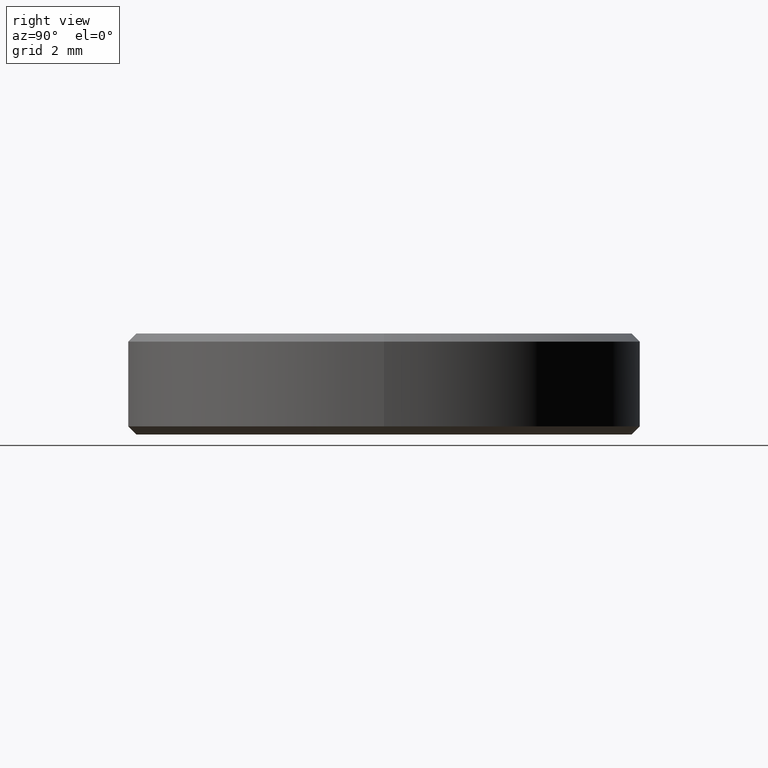
[diagram: clean part render]
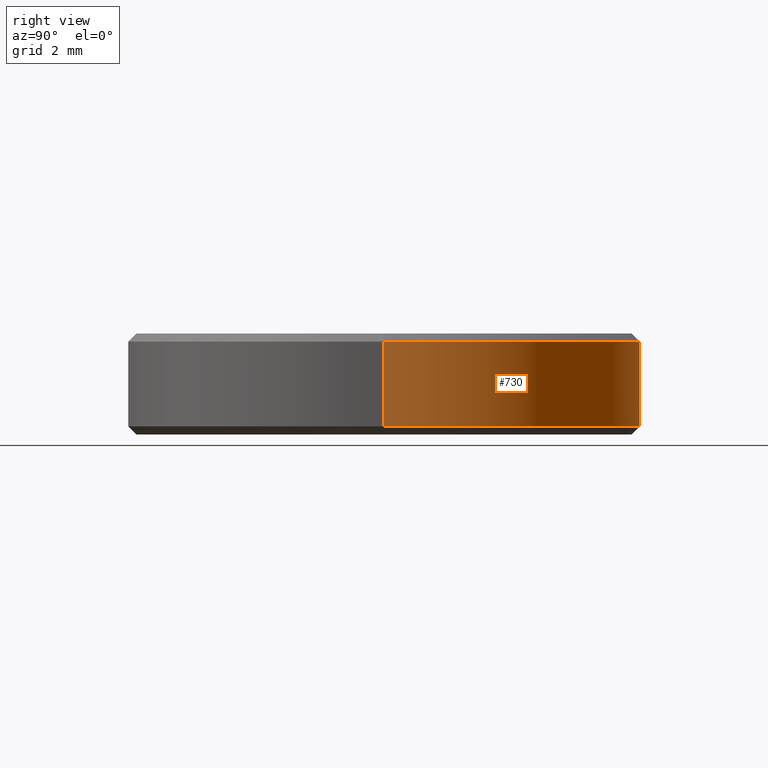
[diagram: same view with one face highlighted and labeled with its STEP entity id]
A machine part, right view. The second image highlights one B-rep face of the part: STEP entity #730.
In plain terms, the highlighted cylindrical surface (partial cylindrical patch) has radius 6.35 mm, axis along (-0, -0, -1).
Its self-contained STEP definition (entity closure, byte-faithful):
#29 = LINE ( 'NONE', #176, #898 ) ;
#36 = DIRECTION ( 'NONE',  ( -0.000000000000000000, -0.000000000000000000, 1.000000000000000000 ) ) ;
#91 = CARTESIAN_POINT ( 'NONE',  ( 0.000000000000000000, 0.000000000000000000, 2.500000000000000000 ) ) ;
#100 = CARTESIAN_POINT ( 'NONE',  ( 0.000000000000000000, 0.000000000000000000, 2.299999999999998490 ) ) ;
#130 = ORIENTED_EDGE ( 'NONE', *, *, #850, .T. ) ;
#169 = ORIENTED_EDGE ( 'NONE', *, *, #735, .F. ) ;
#170 = DIRECTION ( 'NONE',  ( -0.000000000000000000, -0.000000000000000000, -1.000000000000000000 ) ) ;
#176 = CARTESIAN_POINT ( 'NONE',  ( 6.349999999999999645, 7.776507174585692163E-16, 2.500000000000000000 ) ) ;
#279 = FACE_OUTER_BOUND ( 'NONE', #428, .T. ) ;
#336 = CIRCLE ( 'NONE', #456, 6.349999999999999645 ) ;
#337 = CARTESIAN_POINT ( 'NONE',  ( 6.349999999999999645, 7.776507174585692163E-16, 0.2000000000000013989 ) ) ;
#362 = CYLINDRICAL_SURFACE ( 'NONE', #670, 6.349999999999999645 ) ;
#369 = DIRECTION ( 'NONE',  ( -0.000000000000000000, -0.000000000000000000, -1.000000000000000000 ) ) ;
#373 = EDGE_CURVE ( 'NONE', #590, #800, #336, .T. ) ;
#379 = DIRECTION ( 'NONE',  ( 0.000000000000000000, 0.000000000000000000, -1.000000000000000000 ) ) ;
#384 = CARTESIAN_POINT ( 'NONE',  ( 0.000000000000000000, 0.000000000000000000, 0.2000000000000013989 ) ) ;
#391 = ORIENTED_EDGE ( 'NONE', *, *, #373, .T. ) ;
#397 = EDGE_CURVE ( 'NONE', #608, #640, #695, .T. ) ;
#424 = CARTESIAN_POINT ( 'NONE',  ( -6.349999999999999645, 0.000000000000000000, 2.500000000000000000 ) ) ;
#428 = EDGE_LOOP ( 'NONE', ( #462, #130, #391, #169 ) ) ;
#456 = AXIS2_PLACEMENT_3D ( 'NONE', #384, #36, #525 ) ;
#462 = ORIENTED_EDGE ( 'NONE', *, *, #397, .T. ) ;
#525 = DIRECTION ( 'NONE',  ( 1.000000000000000000, 0.000000000000000000, 0.000000000000000000 ) ) ;
#590 = VERTEX_POINT ( 'NONE', #337 ) ;
#608 = VERTEX_POINT ( 'NONE', #755 ) ;
#640 = VERTEX_POINT ( 'NONE', #780 ) ;
#670 = AXIS2_PLACEMENT_3D ( 'NONE', #91, #369, #785 ) ;
#695 = CIRCLE ( 'NONE', #770, 6.349999999999999645 ) ;
#697 = VECTOR ( 'NONE', #704, 1000.000000000000000 ) ;
#704 = DIRECTION ( 'NONE',  ( -0.000000000000000000, -0.000000000000000000, -1.000000000000000000 ) ) ;
#730 = ADVANCED_FACE ( 'NONE', ( #279 ), #362, .T. ) ;
#735 = EDGE_CURVE ( 'NONE', #608, #800, #777, .T. ) ;
#751 = CARTESIAN_POINT ( 'NONE',  ( -6.349999999999999645, 0.000000000000000000, 0.2000000000000013989 ) ) ;
#752 = DIRECTION ( 'NONE',  ( 1.000000000000000000, 0.000000000000000000, 0.000000000000000000 ) ) ;
#755 = CARTESIAN_POINT ( 'NONE',  ( -6.349999999999999645, 0.000000000000000000, 2.299999999999998490 ) ) ;
#770 = AXIS2_PLACEMENT_3D ( 'NONE', #100, #379, #752 ) ;
#777 = LINE ( 'NONE', #424, #697 ) ;
#780 = CARTESIAN_POINT ( 'NONE',  ( 6.349999999999999645, 7.776507174585692163E-16, 2.299999999999998490 ) ) ;
#785 = DIRECTION ( 'NONE',  ( -1.000000000000000000, 0.000000000000000000, 0.000000000000000000 ) ) ;
#800 = VERTEX_POINT ( 'NONE', #751 ) ;
#850 = EDGE_CURVE ( 'NONE', #640, #590, #29, .T. ) ;
#898 = VECTOR ( 'NONE', #170, 1000.000000000000000 ) ;